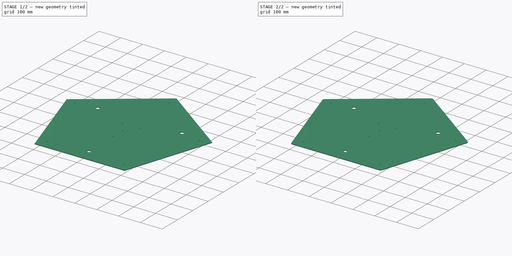
[diagram: build sequence overview — one tinted view per stage of 2, left to right]
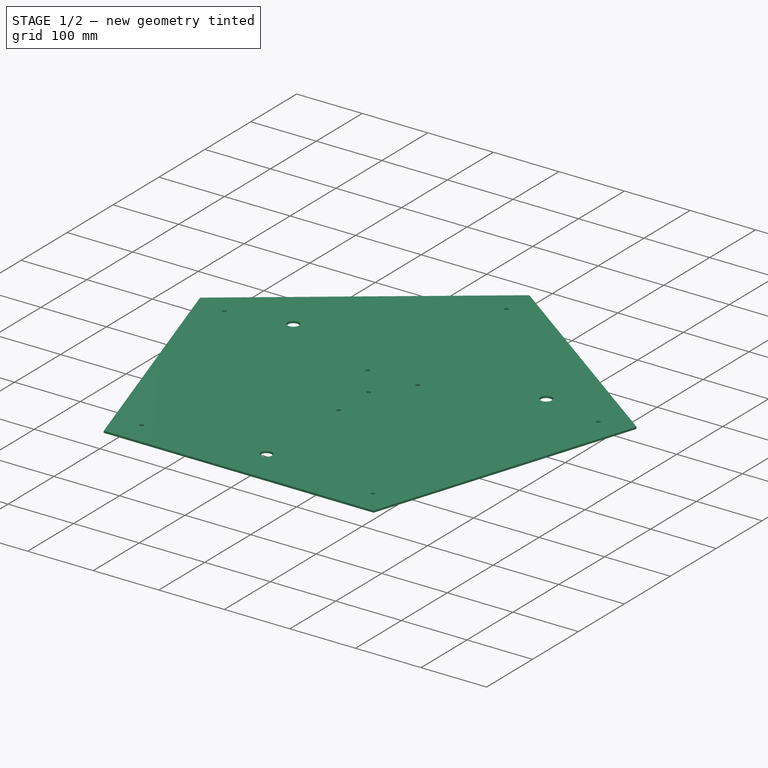
[diagram: stage 1 of 2 — iso view after this stage's code; geometry added in this stage tinted green]
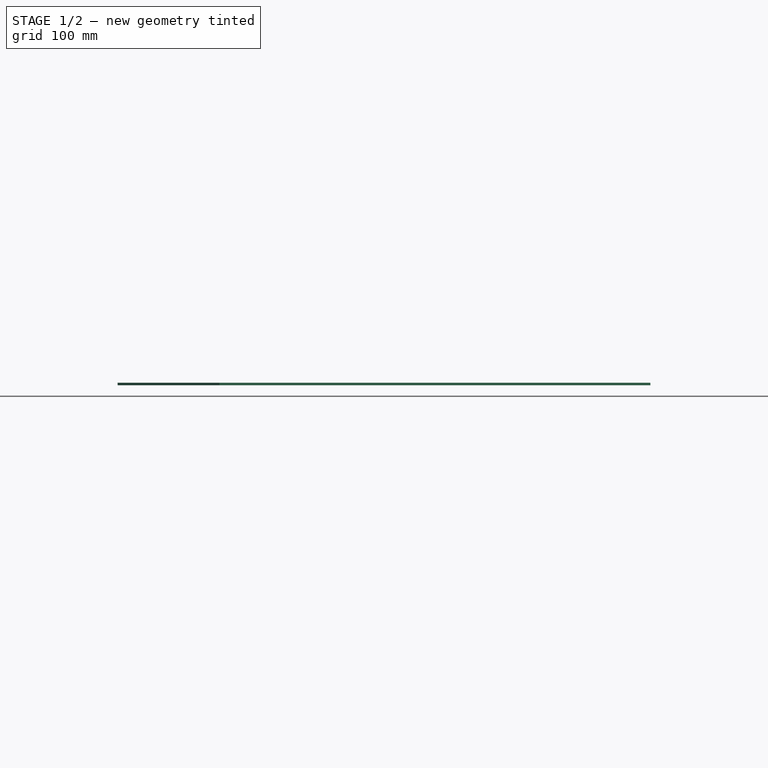
[diagram: stage 1 of 2 — front view after this stage's code; geometry added in this stage tinted green]
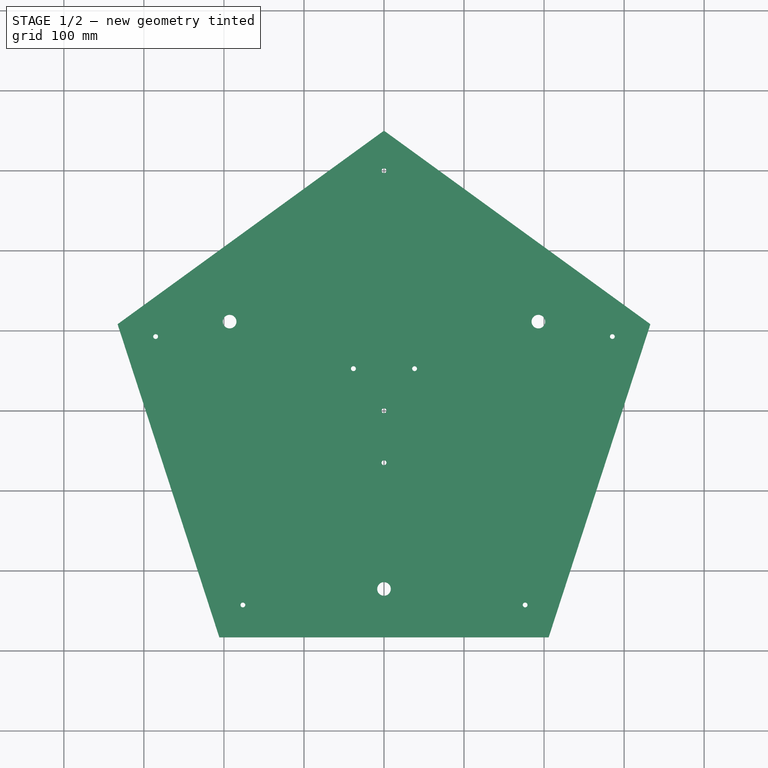
[diagram: stage 1 of 2 — top view after this stage's code; geometry added in this stage tinted green]
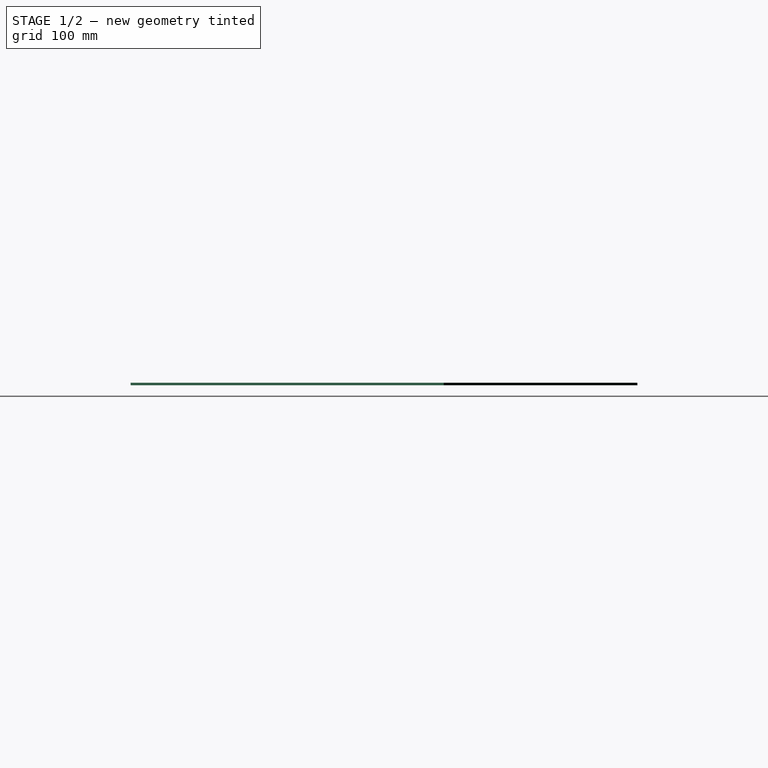
[diagram: stage 1 of 2 — right view after this stage's code; geometry added in this stage tinted green]
FCSTD DOCUMENT  (FreeCAD 0.19R24291 (Git))
Label: Base
License: All rights reserved
LicenseURL: http://en.wikipedia.org/wiki/All_rights_reserved
objects: Sketcher::SketchObject×2, PartDesign::Pad×1, PartDesign::Hole×1, PartDesign::Fillet×1, PartDesign::Body×1
note: 9 computed .brp shape members not serialized (recipe doc carries the construction recipe); baked Part::Feature solids carry a one-line shape summary decoded from their .brp

FEATURE [Sketcher::SketchObject] Sketch
  FullyConstrained = true
  MapMode = 5
  Support = -> [XY_Plane]
  sketch-geometry (37):
    g0: GeomPoint X=0 Y=350 Z=0
    g1: LineSegment StartX=0 StartY=350 StartZ=0 EndX=-332.87 EndY=108.156 EndZ=0
    g2: LineSegment StartX=-332.87 StartY=108.156 StartZ=0 EndX=-205.725 EndY=-283.156 EndZ=0
    g3: LineSegment StartX=-205.725 StartY=-283.156 StartZ=0 EndX=205.725 EndY=-283.156 EndZ=0
    g4: LineSegment StartX=205.725 StartY=-283.156 StartZ=0 EndX=332.87 EndY=108.156 EndZ=0
    g5: LineSegment StartX=332.87 StartY=108.156 StartZ=0 EndX=0 EndY=350 EndZ=0
    g6: Circle CenterX=0 CenterY=0 CenterZ=0 NormalX=0 NormalY=0 NormalZ=1 AngleXU=0 Radius=350
    g7: LineSegment StartX=0 StartY=350 StartZ=0 EndX=-332.87 EndY=108.156 EndZ=0
    g8: LineSegment StartX=-332.87 StartY=108.156 StartZ=0 EndX=-205.725 EndY=-283.156 EndZ=0
    g9: LineSegment StartX=-205.725 StartY=-283.156 StartZ=0 EndX=205.725 EndY=-283.156 EndZ=0
    g10: LineSegment StartX=205.725 StartY=-283.156 StartZ=0 EndX=332.87 EndY=108.156 EndZ=0
    g11: LineSegment StartX=332.87 StartY=108.156 StartZ=0 EndX=0 EndY=350 EndZ=0
    g12: Circle CenterX=0 CenterY=0 CenterZ=0 NormalX=0 NormalY=0 NormalZ=1 AngleXU=0 Radius=350
    g13: LineSegment StartX=0 StartY=0 StartZ=0 EndX=0 EndY=300 EndZ=0
    g14: LineSegment StartX=0 StartY=300 StartZ=0 EndX=-285.317 EndY=92.7051 EndZ=0
    g15: LineSegment StartX=-285.317 StartY=92.7051 StartZ=0 EndX=-176.336 EndY=-242.705 EndZ=0
    g16: LineSegment StartX=-176.336 StartY=-242.705 StartZ=0 EndX=176.336 EndY=-242.705 EndZ=0
    g17: LineSegment StartX=176.336 StartY=-242.705 StartZ=0 EndX=285.317 EndY=92.7051 EndZ=0
    g18: LineSegment StartX=285.317 StartY=92.7051 StartZ=0 EndX=0 EndY=300 EndZ=0
    g19: Circle CenterX=0 CenterY=0 CenterZ=0 NormalX=0 NormalY=0 NormalZ=1 AngleXU=0 Radius=300
    g20: LineSegment StartX=0 StartY=0 StartZ=0 EndX=205.725 EndY=283.156 EndZ=0
    g21: LineSegment StartX=0 StartY=0 StartZ=0 EndX=-205.725 EndY=283.156 EndZ=0
    g22: GeomPoint X=142.658 Y=196.353 Z=0
    g23: GeomPoint X=-142.658 Y=196.353 Z=0
    g24: Circle CenterX=0 CenterY=-222.705 CenterZ=0 NormalX=0 NormalY=0 NormalZ=1 AngleXU=0 Radius=8.5
    g25: GeomPoint X=0 Y=-242.705 Z=0
    g26: LineSegment StartX=0 StartY=-222.705 StartZ=0 EndX=192.868 EndY=111.353 EndZ=0
    g27: LineSegment StartX=192.868 StartY=111.353 StartZ=0 EndX=-192.868 EndY=111.353 EndZ=0
    g28: LineSegment StartX=-192.868 StartY=111.353 StartZ=0 EndX=0 EndY=-222.705 EndZ=0
    g29: Circle CenterX=0 CenterY=0 CenterZ=0 NormalX=0 NormalY=0 NormalZ=1 AngleXU=0 Radius=222.705
    g30: Circle CenterX=-192.868 CenterY=111.353 CenterZ=0 NormalX=0 NormalY=0 NormalZ=1 AngleXU=0 Radius=8.5
    g31: Circle CenterX=192.868 CenterY=111.353 CenterZ=0 NormalX=0 NormalY=0 NormalZ=1 AngleXU=0 Radius=8.5
    g32: Circle CenterX=-176.336 CenterY=-242.705 CenterZ=0 NormalX=0 NormalY=0 NormalZ=1 AngleXU=0 Radius=3
    g33: Circle CenterX=176.336 CenterY=-242.705 CenterZ=0 NormalX=0 NormalY=0 NormalZ=1 AngleXU=0 Radius=3
    g34: Circle CenterX=285.317 CenterY=92.7051 CenterZ=0 NormalX=0 NormalY=0 NormalZ=1 AngleXU=0 Radius=3
    g35: Circle CenterX=-285.317 CenterY=92.7051 CenterZ=0 NormalX=0 NormalY=0 NormalZ=1 AngleXU=0 Radius=3
    g36: Circle CenterX=0 CenterY=300 CenterZ=0 NormalX=0 NormalY=0 NormalZ=1 AngleXU=0 Radius=3
  constraints (83):
    c: PointOnObject(g0,g-2)
    c: Distance(g-1,g0) = 350
    c: Coincident(g1,g2)
    c: Coincident(g2,g3)
    c: Coincident(g3,g4)
    c: Coincident(g4,g5)
    c: Coincident(g5,g1)
    c: Equal(g1, g2-g5) x4
    c: PointOnObject(g1,g6)
    c: PointOnObject(g2,g6)
    c: PointOnObject(g3,g6)
    c: PointOnObject(g4,g6)
    c: PointOnObject(g5,g6)
    c: Coincident(g6,g-1)
    c: Coincident(g5,g0)
    c: Coincident(g7,g8)
    c: Coincident(g8,g9)
    c: Coincident(g9,g10)
    c: Coincident(g10,g11)
    c: Coincident(g11,g7)
    c: Equal(g7, g8-g11) x4
    c: PointOnObject(g7,g12)
    c: PointOnObject(g8,g12)
    c: PointOnObject(g9,g12)
    c: PointOnObject(g10,g12)
    c: PointOnObject(g11,g12)
    c: Coincident(g12,g-1)
    c: Coincident(g11,g0)
    c: Coincident(g13,g-1)
    c: PointOnObject(g13,g-2)
    c: DistanceY(g13,g13) = 300
    c: Coincident(g14,g15)
    c: Coincident(g15,g16)
    c: Coincident(g16,g17)
    c: Coincident(g17,g18)
    c: Coincident(g18,g14)
    c: Equal(g14, g15-g18) x4
    c: PointOnObject(g14,g19)
    c: PointOnObject(g15,g19)
    c: PointOnObject(g16,g19)
    c: PointOnObject(g17,g19)
    c: PointOnObject(g18,g19)
    c: Coincident(g19,g-1)
    c: Coincident(g18,g13)
    c: Coincident(g20,g-1)
    c: PointOnObject(g20,g6)
    c: Coincident(g21,g-1)
    c: PointOnObject(g21,g6)
    c: Angle(g20,g13) = 0.628319
    c: Angle(g13,g21) = 0.628319
    c: PointOnObject(g22,g18)
    c: PointOnObject(g22,g20)
    c: PointOnObject(g23,g14)
    c: PointOnObject(g23,g21)
    c: PointOnObject(g24,g-2)
    c: Diameter(g24) = 17
    c: PointOnObject(g25,g16)
    c: PointOnObject(g25,g-2)
    c: Distance(g24,g25) = 20
    c: Coincident(g26,g27)
    c: Coincident(g27,g28)
    c: Coincident(g28,g26)
    c: Equal(g26,g27)
    c: Equal(g26,g28)
    c: PointOnObject(g26,g29)
    c: PointOnObject(g27,g29)
    c: PointOnObject(g28,g29)
    c: Coincident(g29,g-1)
    c: Coincident(g28,g24)
    c: Coincident(g30,g27)
    c: Coincident(g31,g26)
    c: Diameter(g30) = 17
    c: Diameter(g31) = 17
    c: Coincident(g32,g15)
    c: Coincident(g33,g16)
    c: Coincident(g34,g17)
    c: Coincident(g35,g14)
    c: Coincident(g36,g13)
    c: Diameter(g35) = 6
    c: Diameter(g36) = 6
    c: Diameter(g34) = 6
    c: Diameter(g33) = 6
    c: Diameter(g32) = 6
FEATURE [PartDesign::Pad] Pad
  Direction = (1,1,1)
  Length = 3
  Length2 = 100
  Profile = -> Sketch
  Type = 0
FEATURE [Sketcher::SketchObject] Sketch001
  FullyConstrained = true
  MapMode = 5
  Placement = pos=(0,0,3) rot=(0,0,1;0rad)
  Support = -> [Pad]
  sketch-geometry (8):
    g0: Circle CenterX=0 CenterY=0 CenterZ=0 NormalX=0 NormalY=0 NormalZ=1 AngleXU=0 Radius=65
    g1: LineSegment StartX=0 StartY=0 StartZ=0 EndX=-38.206 EndY=52.5861 EndZ=0
    g2: LineSegment StartX=0 StartY=0 StartZ=0 EndX=38.206 EndY=52.5861 EndZ=0
    g3: LineSegment StartX=0 StartY=0 StartZ=0 EndX=0 EndY=-65 EndZ=0
    g4: Circle CenterX=-38.206 CenterY=52.5861 CenterZ=0 NormalX=0 NormalY=0 NormalZ=1 AngleXU=0 Radius=3.05
    g5: Circle CenterX=38.206 CenterY=52.5861 CenterZ=0 NormalX=0 NormalY=0 NormalZ=1 AngleXU=0 Radius=3.05
    g6: Circle CenterX=0 CenterY=-65 CenterZ=0 NormalX=0 NormalY=0 NormalZ=1 AngleXU=0 Radius=3.05
    g7: Circle CenterX=0 CenterY=0 CenterZ=0 NormalX=0 NormalY=0 NormalZ=1 AngleXU=0 Radius=3.05
  constraints (19):
    c: Coincident(g0,g-1)
    c: Diameter(g0) = 130
    c: Coincident(g1,g-1)
    c: PointOnObject(g1,g0)
    c: Coincident(g2,g-1)
    c: PointOnObject(g2,g0)
    c: Coincident(g3,g-1)
    c: PointOnObject(g3,g0)
    c: Vertical(g3)
    c: Angle(g-2,g1) = 0.628319
    c: Angle(g2,g-2) = 0.628319
    c: Coincident(g4,g1)
    c: Coincident(g5,g2)
    c: Coincident(g6,g3)
    c: Coincident(g7,g-1)
    c: Diameter(g4) = 6.1
    c: Diameter(g5) = 6.1
    c: Diameter(g7) = 6.1
    c: Diameter(g6) = 6.1
FEATURE [PartDesign::Hole] Hole
  BaseFeature = -> Pad
  Depth = 25
  DepthType = 1
  Diameter = 6.1
  DrillForDepth = false
  DrillPoint = 1
  DrillPointAngle = 118
  HoleCutCountersinkAngle = 90
  HoleCutCustomValues = false
  HoleCutDepth = 0
  HoleCutDiameter = 6.1
  HoleCutType = 0
  ModelActualThread = false
  Profile = -> Sketch001
  Tapered = false
  TaperedAngle = 90
  ThreadAngle = 0
  ThreadClass = 0
  ThreadCutOffInner = 0
  ThreadCutOffOuter = 0
  ThreadDirection = 0
  ThreadFit = 0
  ThreadPitch = 0
  ThreadSize = 0
  ThreadType = 0
  Threaded = false
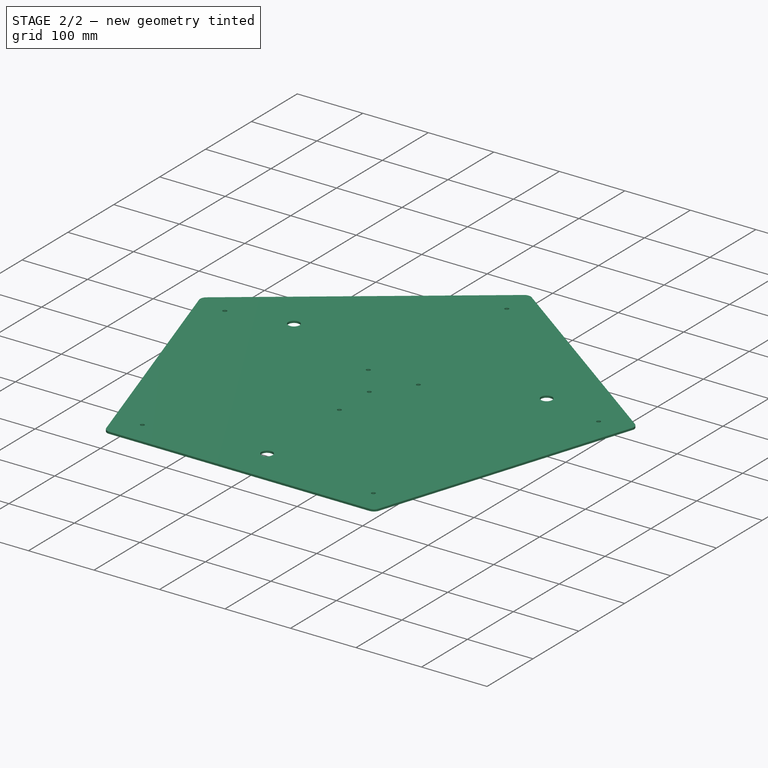
[diagram: stage 2 of 2 — iso view after this stage's code; geometry added in this stage tinted green]
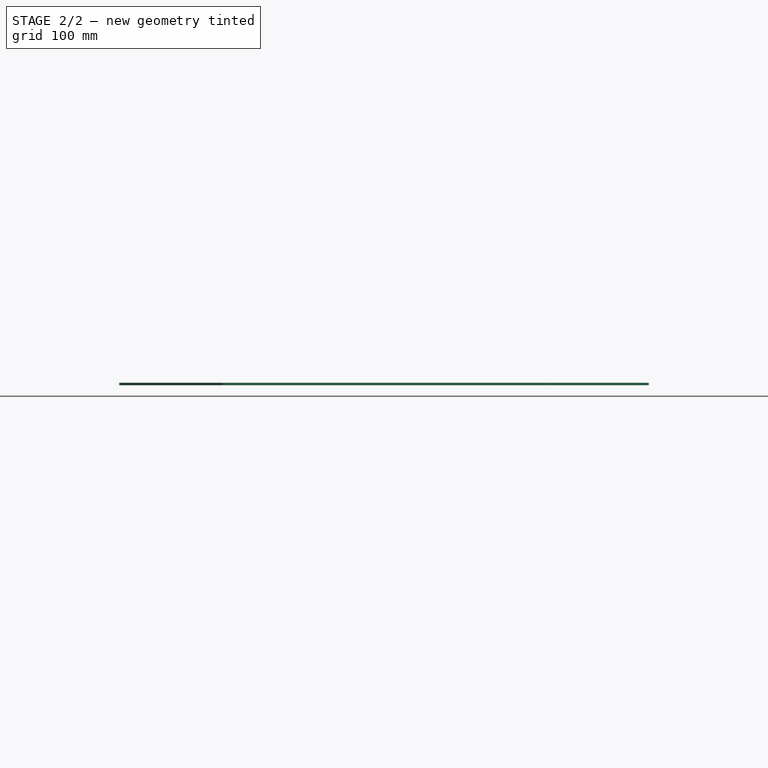
[diagram: stage 2 of 2 — front view after this stage's code; geometry added in this stage tinted green]
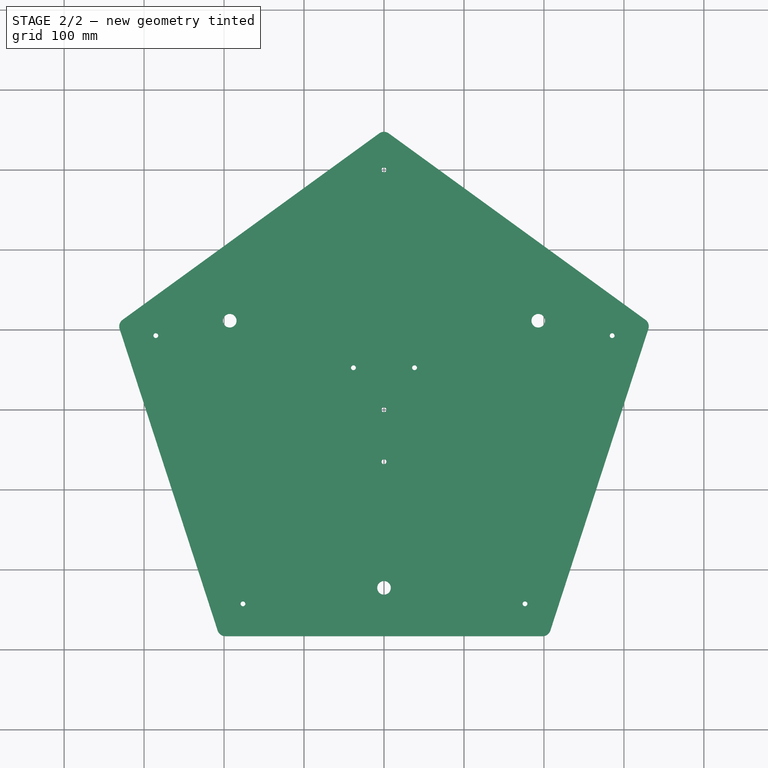
[diagram: stage 2 of 2 — top view after this stage's code; geometry added in this stage tinted green]
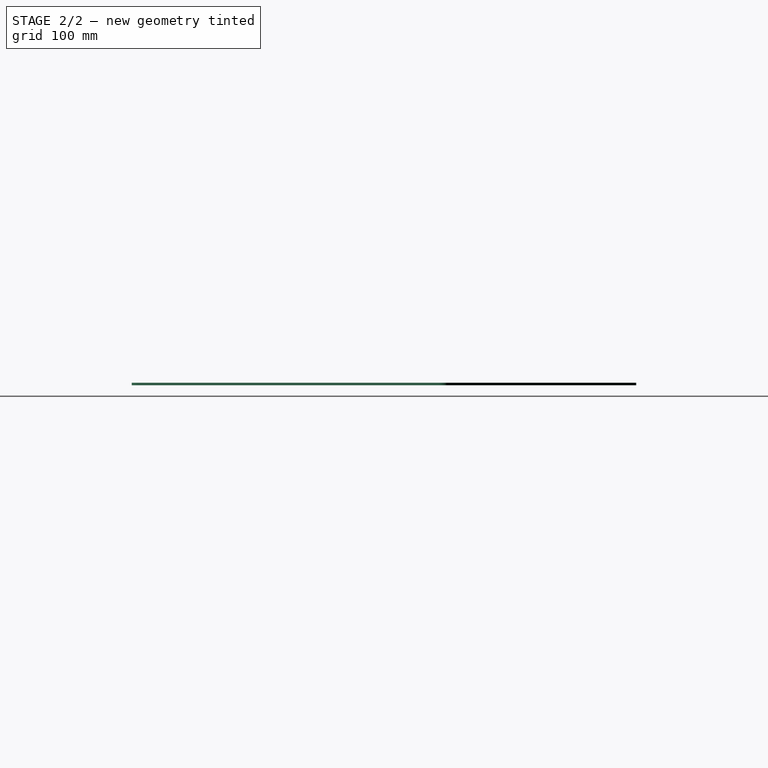
[diagram: stage 2 of 2 — right view after this stage's code; geometry added in this stage tinted green]
FEATURE [PartDesign::Fillet] Fillet
  Base = -> Hole [Edge2,Edge1,Edge5,Edge39,Edge8]
  BaseFeature = -> Hole
  Radius = 10
  SupportTransform = false
FEATURE [PartDesign::Body] Body
  Group = -> [Sketch,Pad,Sketch001,Hole,Fillet]
  Origin = -> Origin
  Tip = -> Fillet
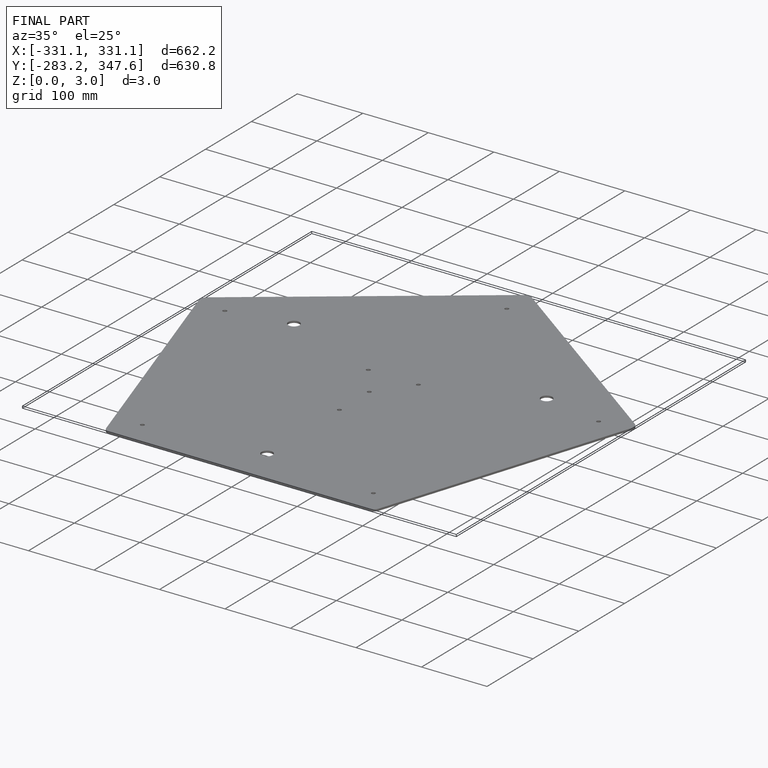
[diagram: finished part — iso view with bounding-box wireframe]
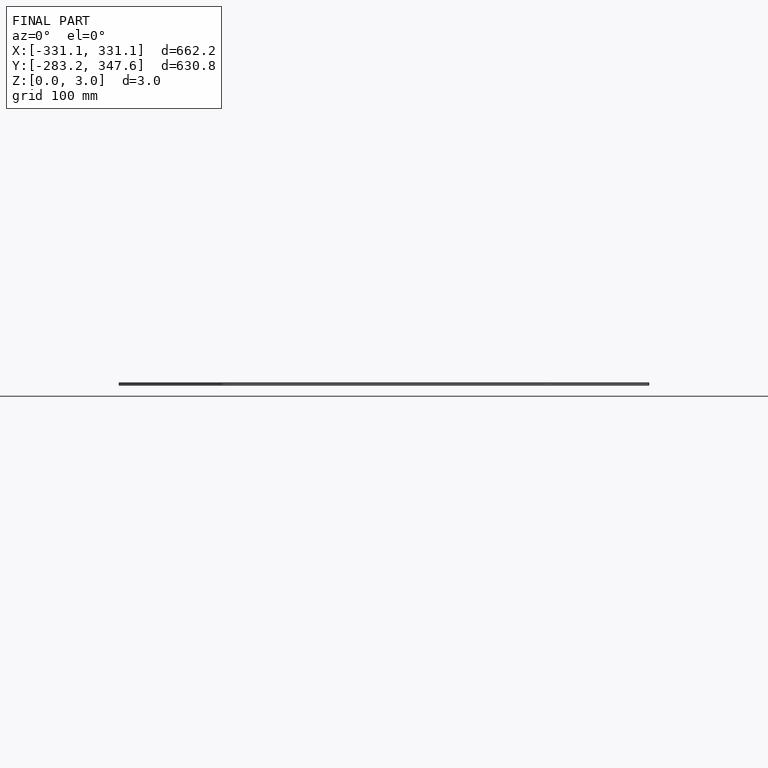
[diagram: finished part — front view with bounding-box wireframe]
